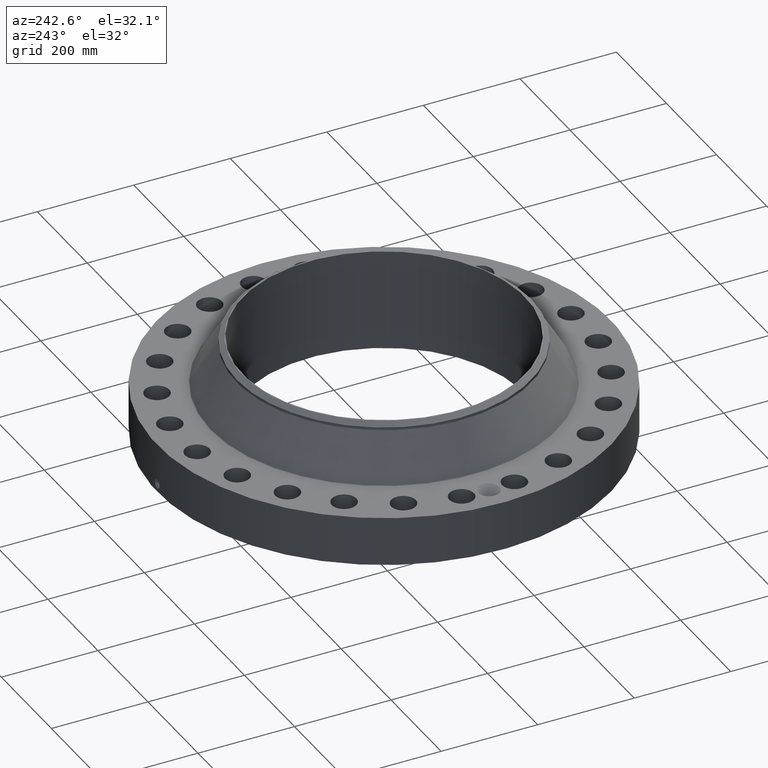
[diagram: clean part render]
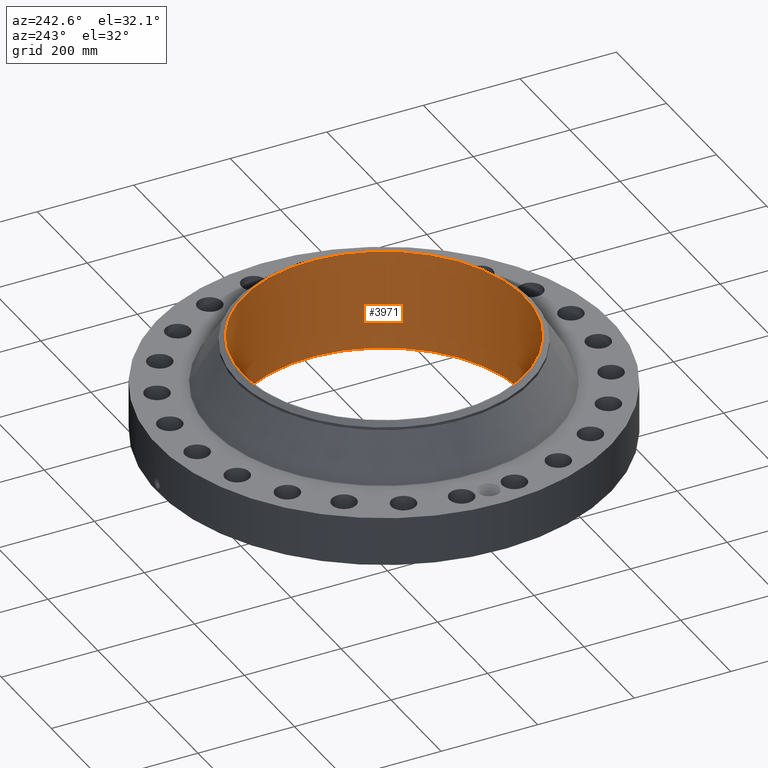
[diagram: same view with one face highlighted and labeled with its STEP entity id]
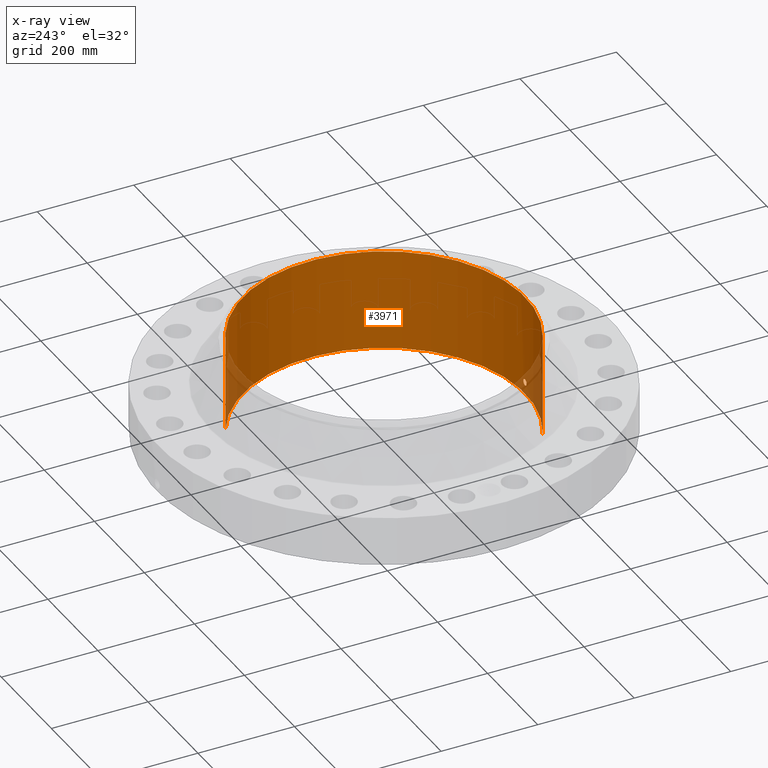
[diagram: x-ray of the same camera — body ghosted, the highlighted face saturated]
A machine part, auxiliary view. The second image highlights one B-rep face of the part: STEP entity #3971.
The next image is the same camera in x-ray: the body ghosted, the highlighted face saturated — about 6% of this face is hidden behind the body in this view.
In plain terms, the highlighted cylindrical surface (partial cylindrical patch) has radius 292.1 mm, axis along (0, 0, -1).
Its self-contained STEP definition (entity closure, byte-faithful):
#3172=AXIS2_PLACEMENT_3D('Circle Axis2P3D',#3170,#3171,$) ;
#3902=AXIS2_PLACEMENT_3D('Cylinder Axis2P3D',#3899,#3900,#3901) ;
#3906=AXIS2_PLACEMENT_3D('Circle Axis2P3D',#3904,#3905,$) ;
#3170=CARTESIAN_POINT('Axis2P3D Location',(0.,0.,0.)) ;
#3174=CARTESIAN_POINT('Vertex',(5.51339369397,10.0921994618,-8.05654755508E-014)) ;
#3176=CARTESIAN_POINT('Vertex',(-5.51339369397,-10.0921994618,-8.05654755508E-014)) ;
#3899=CARTESIAN_POINT('Axis2P3D Location',(0.,0.,4.12500000002)) ;
#3904=CARTESIAN_POINT('Axis2P3D Location',(0.,0.,8.25000000003)) ;
#3908=CARTESIAN_POINT('Vertex',(5.51339369397,10.0921994618,8.25000000003)) ;
#3910=CARTESIAN_POINT('Vertex',(-5.51339369397,-10.0921994618,8.25000000003)) ;
#3913=CARTESIAN_POINT('Line Origine',(5.51339369397,10.0921994618,4.12500000002)) ;
#3918=CARTESIAN_POINT('Line Origine',(-5.51339369397,-10.0921994618,4.12500000002)) ;
#3930=CARTESIAN_POINT('Control Point',(0.219395640473,-11.4979070075,0.820143615352)) ;
#3931=CARTESIAN_POINT('Control Point',(0.194442701021,-11.4983831434,0.774467566064)) ;
#3932=CARTESIAN_POINT('Control Point',(0.157603856141,-11.4990183623,0.735286560755)) ;
#3933=CARTESIAN_POINT('Control Point',(0.111104358556,-11.4996361758,0.706755379913)) ;
#3934=CARTESIAN_POINT('Control Point',(0.0336682851471,-11.50012771,0.68411667958)) ;
#3935=CARTESIAN_POINT('Control Point',(-0.0446769888599,-11.4999578134,0.691944437843)) ;
#3936=CARTESIAN_POINT('Control Point',(-0.0703084169794,-11.4998259245,0.697958113493)) ;
#3937=CARTESIAN_POINT('Control Point',(-0.143966623963,-11.4992431363,0.725793962941)) ;
#3938=CARTESIAN_POINT('Control Point',(-0.203255575501,-11.4982919512,0.78051551492)) ;
#3939=CARTESIAN_POINT('Control Point',(-0.232218432932,-11.4976681969,0.826759654399)) ;
#3940=CARTESIAN_POINT('Control Point',(-0.255842003452,-11.4971555864,0.904904446409)) ;
#3941=CARTESIAN_POINT('Control Point',(-0.248280131767,-11.4973195385,0.984264161441)) ;
#3942=CARTESIAN_POINT('Control Point',(-0.242046418173,-11.497456651,1.01082240876)) ;
#3943=CARTESIAN_POINT('Control Point',(-0.232313846385,-11.4976605107,1.03620976735)) ;
#3944=CARTESIAN_POINT('Control Point',(-0.219395640473,-11.4979070075,1.05985638466)) ;
#3945=CARTESIAN_POINT('Vertex',(0.219395640473,-11.4979070075,0.820143615352)) ;
#3947=CARTESIAN_POINT('Vertex',(-0.219395640473,-11.4979070075,1.05985638466)) ;
#3951=CARTESIAN_POINT('Control Point',(-0.219395640473,-11.4979070075,1.05985638466)) ;
#3952=CARTESIAN_POINT('Control Point',(-0.194442701023,-11.4983831434,1.10553243394)) ;
#3953=CARTESIAN_POINT('Control Point',(-0.157603856146,-11.4990183623,1.14471343925)) ;
#3954=CARTESIAN_POINT('Control Point',(-0.111104358553,-11.4996361758,1.17324462009)) ;
#3955=CARTESIAN_POINT('Control Point',(-0.0336682851524,-11.50012771,1.19588332043)) ;
#3956=CARTESIAN_POINT('Control Point',(0.0446769888477,-11.4999578134,1.18805556217)) ;
#3957=CARTESIAN_POINT('Control Point',(0.0703084169814,-11.4998259245,1.18204188651)) ;
#3958=CARTESIAN_POINT('Control Point',(0.143966624012,-11.4992431363,1.15420603705)) ;
#3959=CARTESIAN_POINT('Control Point',(0.203255575581,-11.4982919512,1.09948448502)) ;
#3960=CARTESIAN_POINT('Control Point',(0.232218432897,-11.4976681969,1.05324034572)) ;
#3961=CARTESIAN_POINT('Control Point',(0.255842003428,-11.4971555864,0.975095553754)) ;
#3962=CARTESIAN_POINT('Control Point',(0.248280131786,-11.4973195385,0.895735838766)) ;
#3963=CARTESIAN_POINT('Control Point',(0.242046418103,-11.497456651,0.869177591061)) ;
#3964=CARTESIAN_POINT('Control Point',(0.232313846338,-11.4976605107,0.843790232574)) ;
#3965=CARTESIAN_POINT('Control Point',(0.219395640473,-11.4979070075,0.820143615352)) ;
#3171=DIRECTION('Axis2P3D Direction',(0.,0.,-0.0393700787402)) ;
#3900=DIRECTION('Axis2P3D Direction',(0.,0.,-0.0393700787402)) ;
#3901=DIRECTION('Axis2P3D XDirection',(-0.0188750212049,-0.0345504945626,0.)) ;
#3905=DIRECTION('Axis2P3D Direction',(0.,0.,-0.0393700787402)) ;
#3914=DIRECTION('Vector Direction',(0.,0.,-0.0393700787402)) ;
#3919=DIRECTION('Vector Direction',(0.,0.,-0.0393700787402)) ;
#3915=VECTOR('Line Direction',#3914,0.0393700787402) ;
#3920=VECTOR('Line Direction',#3919,0.0393700787402) ;
#3924=ORIENTED_EDGE('',*,*,#3912,.F.) ;
#3925=ORIENTED_EDGE('',*,*,#3917,.T.) ;
#3926=ORIENTED_EDGE('',*,*,#3178,.T.) ;
#3927=ORIENTED_EDGE('',*,*,#3922,.F.) ;
#3968=ORIENTED_EDGE('',*,*,#3949,.F.) ;
#3969=ORIENTED_EDGE('',*,*,#3966,.F.) ;
#3970=FACE_BOUND('',#3967,.T.) ;
#3971=ADVANCED_FACE('PartBody',(#3928,#3970),#3903,.F.) ;
#3929=B_SPLINE_CURVE_WITH_KNOTS('',5,(#3930,#3931,#3932,#3933,#3934,#3935,#3936,#3937,#3938,#3939,#3940,#3941,#3942,#3943,#3944),.UNSPECIFIED.,.F.,.U.,(6,3,3,3,6),(0.,9.34840326707,14.02301654,23.3730638084,28.2127580887),.UNSPECIFIED.) ;
#3950=B_SPLINE_CURVE_WITH_KNOTS('',5,(#3951,#3952,#3953,#3954,#3955,#3956,#3957,#3958,#3959,#3960,#3961,#3962,#3963,#3964,#3965),.UNSPECIFIED.,.F.,.U.,(6,3,3,3,6),(0.,9.34840326644,14.0230165387,23.3730638169,28.2127580798),.UNSPECIFIED.) ;
#3173=CIRCLE('generated circle',#3172,11.5) ;
#3907=CIRCLE('generated circle',#3906,11.5) ;
#3903=CYLINDRICAL_SURFACE('generated cylinder',#3902,11.5) ;
#3178=EDGE_CURVE('',#3175,#3177,#3173,.T.) ;
#3912=EDGE_CURVE('',#3909,#3911,#3907,.T.) ;
#3917=EDGE_CURVE('',#3909,#3175,#3916,.T.) ;
#3922=EDGE_CURVE('',#3911,#3177,#3921,.T.) ;
#3949=EDGE_CURVE('',#3946,#3948,#3929,.T.) ;
#3966=EDGE_CURVE('',#3948,#3946,#3950,.T.) ;
#3923=EDGE_LOOP('',(#3924,#3925,#3926,#3927)) ;
#3967=EDGE_LOOP('',(#3968,#3969)) ;
#3928=FACE_OUTER_BOUND('',#3923,.T.) ;
#3916=LINE('Line',#3913,#3915) ;
#3921=LINE('Line',#3918,#3920) ;
#3175=VERTEX_POINT('',#3174) ;
#3177=VERTEX_POINT('',#3176) ;
#3909=VERTEX_POINT('',#3908) ;
#3911=VERTEX_POINT('',#3910) ;
#3946=VERTEX_POINT('',#3945) ;
#3948=VERTEX_POINT('',#3947) ;